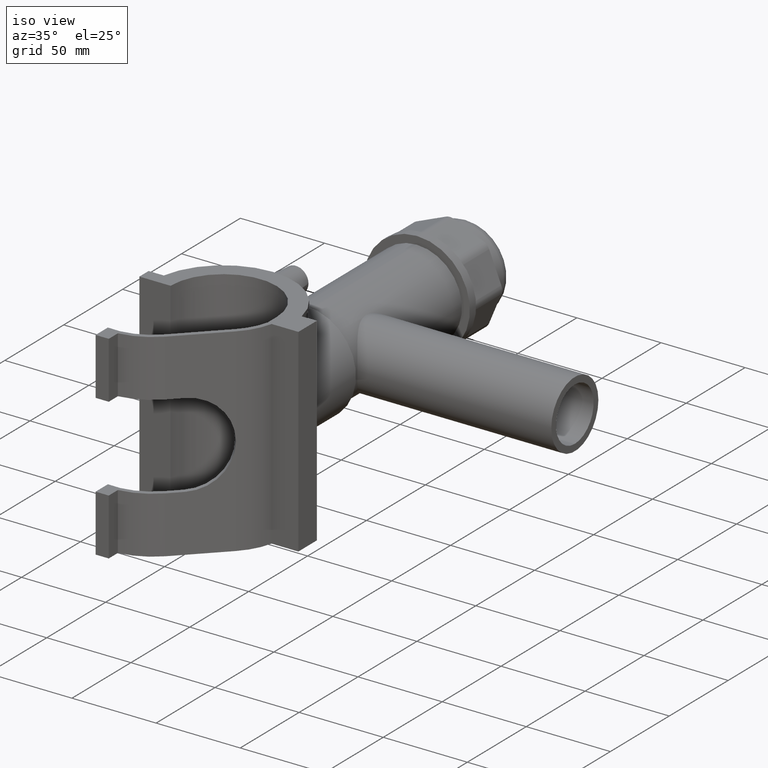
[diagram: clean part render]
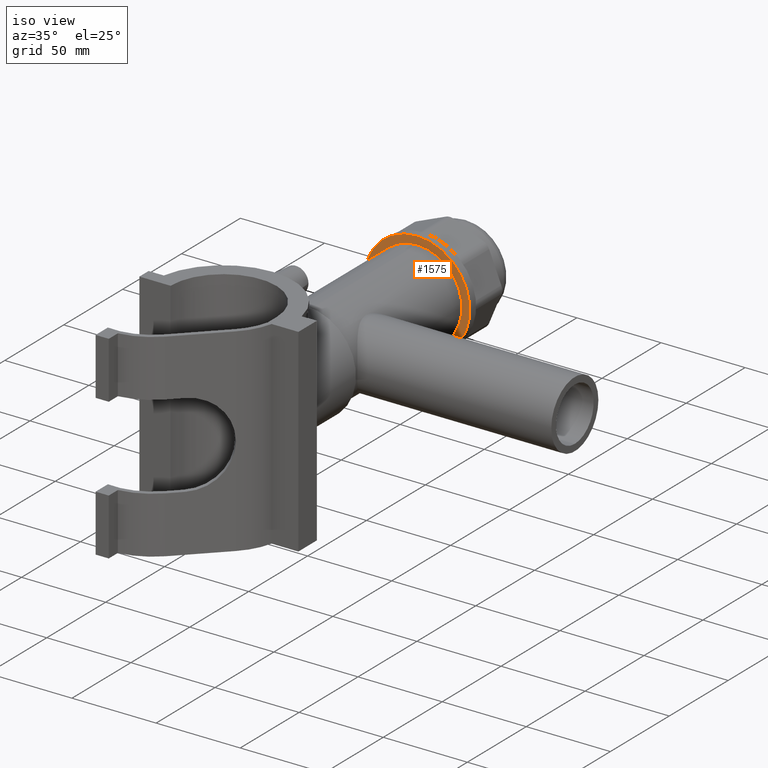
[diagram: same view with one face highlighted and labeled with its STEP entity id]
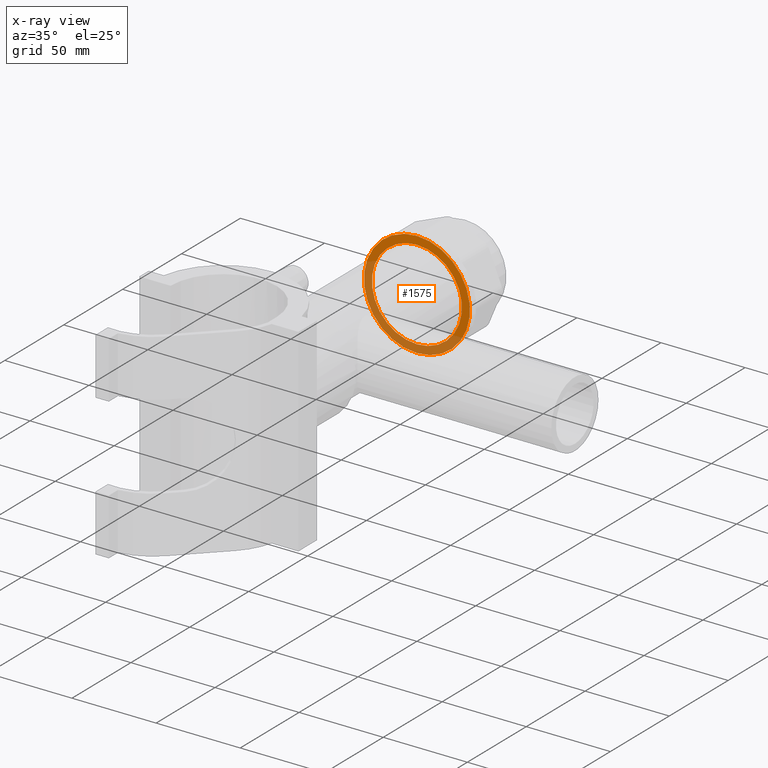
[diagram: x-ray of the same camera — body ghosted, the highlighted face saturated]
A machine part, iso view. The second image highlights one B-rep face of the part: STEP entity #1575.
The next image is the same camera in x-ray: the body ghosted, the highlighted face saturated — about 46% of this face is hidden behind the body in this view.
In plain terms, the highlighted planar face has unit normal (0, -1, -0).
Its self-contained STEP definition (entity closure, byte-faithful):
#314=FACE_BOUND('',#536,.T.);
#419=FACE_OUTER_BOUND('',#535,.T.);
#535=EDGE_LOOP('',(#1228));
#536=EDGE_LOOP('',(#1229));
#643=CIRCLE('',#1714,26.775);
#644=CIRCLE('',#1716,31.5);
#742=VERTEX_POINT('',#2742);
#743=VERTEX_POINT('',#2745);
#921=EDGE_CURVE('',#742,#742,#643,.T.);
#922=EDGE_CURVE('',#743,#743,#644,.T.);
#1228=ORIENTED_EDGE('',*,*,#922,.F.);
#1229=ORIENTED_EDGE('',*,*,#921,.T.);
#1494=PLANE('',#1715);
#1575=ADVANCED_FACE('',(#419,#314),#1494,.T.);
#1714=AXIS2_PLACEMENT_3D('',#2743,#2024,#2025);
#1715=AXIS2_PLACEMENT_3D('',#2744,#2026,#2027);
#1716=AXIS2_PLACEMENT_3D('',#2746,#2028,#2029);
#2024=DIRECTION('center_axis',(0.,1.,3.06161699786838E-16));
#2025=DIRECTION('ref_axis',(1.,0.,0.));
#2026=DIRECTION('center_axis',(0.,-1.,-3.06161699786838E-16));
#2027=DIRECTION('ref_axis',(0.,0.,-1.));
#2028=DIRECTION('center_axis',(0.,1.,3.06161699786838E-16));
#2029=DIRECTION('ref_axis',(1.,0.,0.));
#2742=CARTESIAN_POINT('',(0.,164.25,26.7750000000001));
#2743=CARTESIAN_POINT('Origin',(0.,164.25,4.06429656467028E-14));
#2744=CARTESIAN_POINT('Origin',(0.,164.25,31.5));
#2745=CARTESIAN_POINT('',(0.,164.25,31.5));
#2746=CARTESIAN_POINT('Origin',(0.,164.25,4.06429656467028E-14));